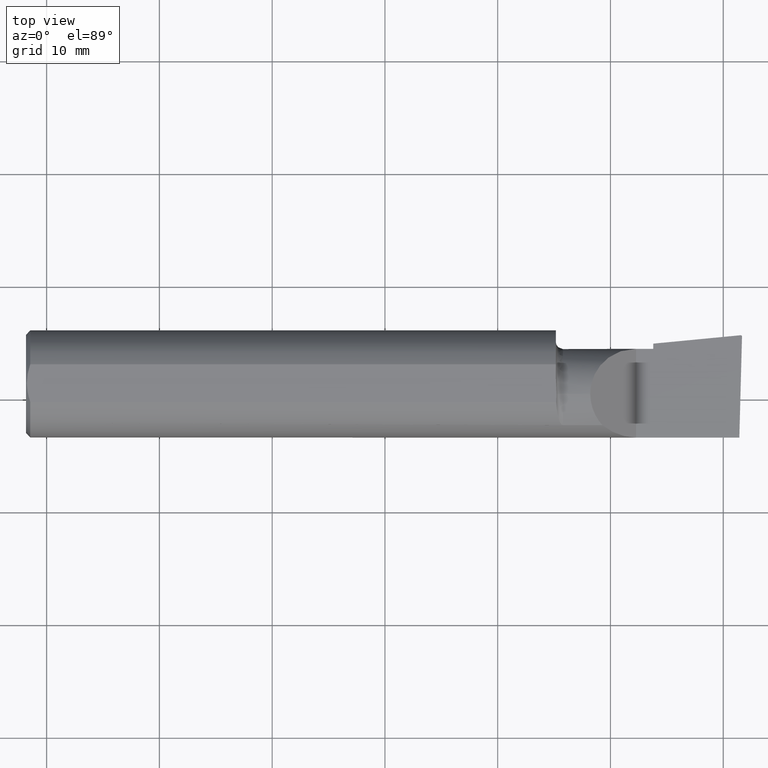
[diagram: clean part render]
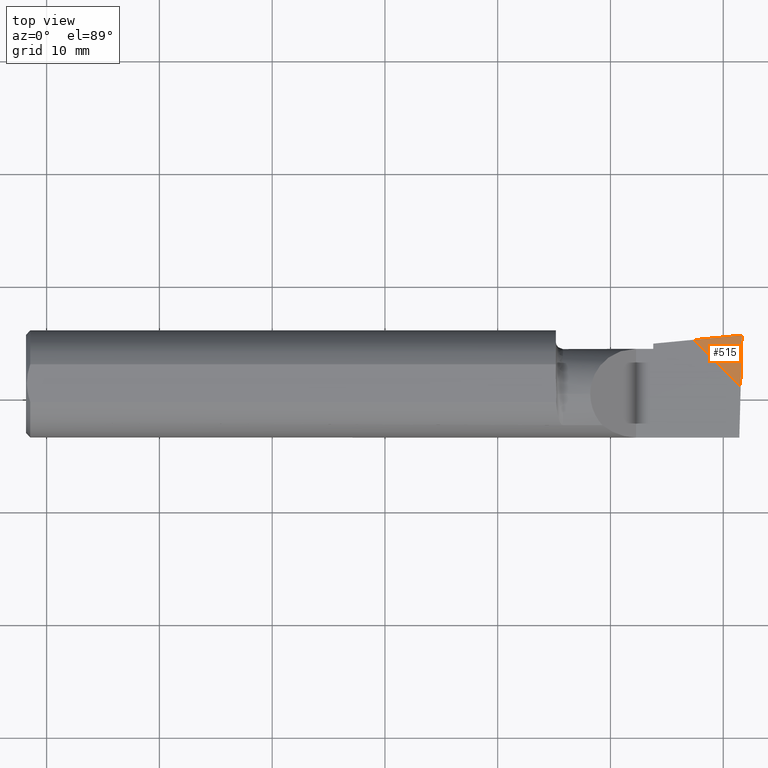
[diagram: same view with one face highlighted and labeled with its STEP entity id]
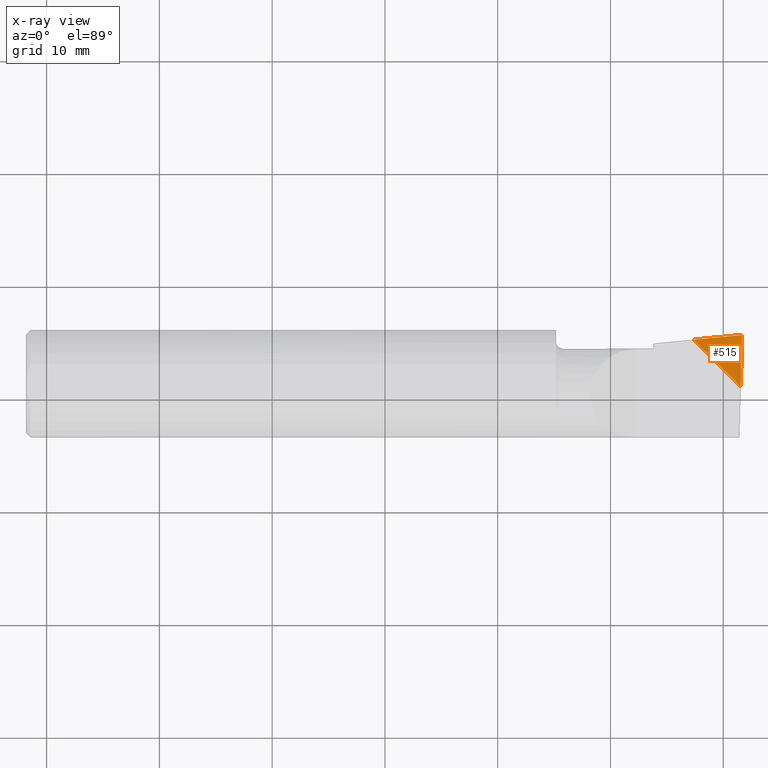
[diagram: x-ray of the same camera — body ghosted, the highlighted face saturated]
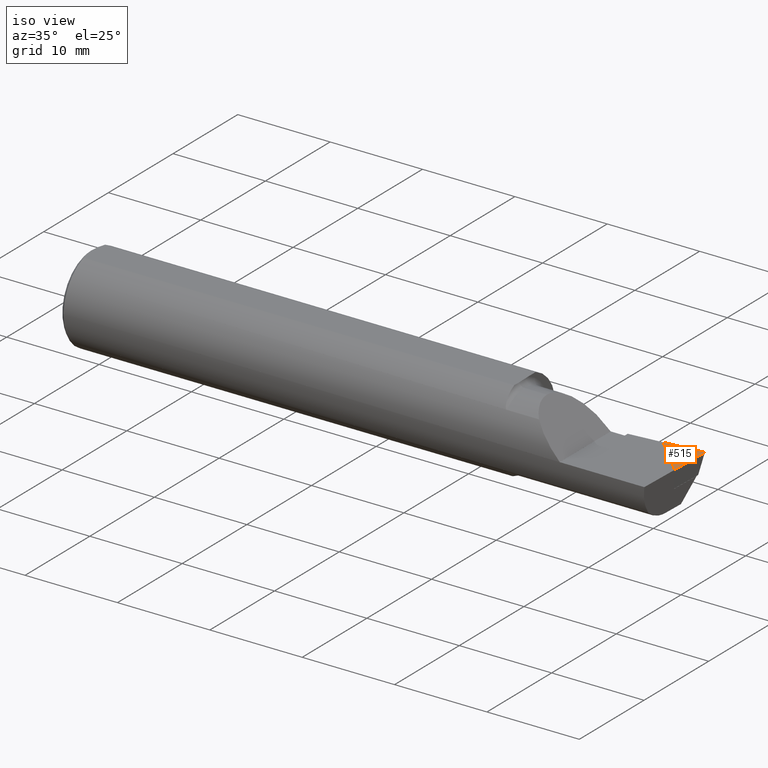
[diagram: same view with one face highlighted and labeled with its STEP entity id]
A machine part, top view. The second image highlights one B-rep face of the part: STEP entity #515.
The next image is the same camera in x-ray: the body ghosted, the highlighted face saturated — about 0% of this face is hidden behind the body in this view.
A second angle (iso view) of the same face is appended — the face is thin or edge-on in the first view.
In plain terms, the highlighted planar face has unit normal (0, 0, 1).
Its self-contained STEP definition (entity closure, byte-faithful):
#1 = EDGE_CURVE ( 'NONE', #270, #599, #916, .T. ) ;
#33 = VECTOR ( 'NONE', #243, 39.37007874015748143 ) ;
#42 = EDGE_CURVE ( 'NONE', #270, #531, #910, .T. ) ;
#43 =( BOUNDED_CURVE ( )  B_SPLINE_CURVE ( 3, ( #1213, #928, #1016, #842 ),
 .UNSPECIFIED., .F., .F. ) 
 B_SPLINE_CURVE_WITH_KNOTS ( ( 4, 4 ),
 ( 5.094537005627825188, 6.745662020094826516 ),
 .UNSPECIFIED. ) 
 CURVE ( )  GEOMETRIC_REPRESENTATION_ITEM ( )  RATIONAL_B_SPLINE_CURVE ( ( 1.000000000000000000, 0.7854291132347823723, 0.7854291132347823723, 1.000000000000000000 ) ) 
 REPRESENTATION_ITEM ( '' )  );
#45 = DIRECTION ( 'NONE',  ( 0.9953961983671787417, 0.09584575252022441150, -0.000000000000000000 ) ) ;
#123 = ORIENTED_EDGE ( 'NONE', *, *, #754, .T. ) ;
#171 = EDGE_CURVE ( 'NONE', #599, #1223, #971, .T. ) ;
#237 = CARTESIAN_POINT ( 'NONE',  ( 0.000000000000000000, 0.1850000000000018574, 0.000000000000000000 ) ) ;
#243 = DIRECTION ( 'NONE',  ( 0.7071067811865440200, -0.7071067811865511255, -0.000000000000000000 ) ) ;
#270 = VERTEX_POINT ( 'NONE', #463 ) ;
#300 = EDGE_LOOP ( 'NONE', ( #655, #123, #612, #392 ) ) ;
#392 = ORIENTED_EDGE ( 'NONE', *, *, #1, .T. ) ;
#421 = AXIS2_PLACEMENT_3D ( 'NONE', #659, #498, #1172 ) ;
#438 = VECTOR ( 'NONE', #1067, 39.37007874015748854 ) ;
#463 = CARTESIAN_POINT ( 'NONE',  ( -0.1687511156881184304, 0.1687511156881201513, 0.000000000000000000 ) ) ;
#498 = DIRECTION ( 'NONE',  ( 0.000000000000000000, 0.000000000000000000, 1.000000000000000000 ) ) ;
#515 = ADVANCED_FACE ( 'NONE', ( #755 ), #1145, .T. ) ;
#531 = VERTEX_POINT ( 'NONE', #1049 ) ;
#599 = VERTEX_POINT ( 'NONE', #609 ) ;
#609 = CARTESIAN_POINT ( 'NONE',  ( -0.004755318515724063846, 0.004755318515723935477, 0.000000000000000000 ) ) ;
#612 = ORIENTED_EDGE ( 'NONE', *, *, #42, .F. ) ;
#655 = ORIENTED_EDGE ( 'NONE', *, *, #171, .T. ) ;
#659 = CARTESIAN_POINT ( 'NONE',  ( 0.000000000000000000, 0.1850000000000018574, 0.000000000000000000 ) ) ;
#754 = EDGE_CURVE ( 'NONE', #1223, #531, #43, .T. ) ;
#755 = FACE_OUTER_BOUND ( 'NONE', #300, .T. ) ;
#842 = CARTESIAN_POINT ( 'NONE',  ( -0.004366002536026030757, 0.1845796017713798587, 0.000000000000000000 ) ) ;
#910 = LINE ( 'NONE', #237, #945 ) ;
#916 = LINE ( 'NONE', #926, #33 ) ;
#926 = CARTESIAN_POINT ( 'NONE',  ( 0.000000000000000000, 0.000000000000000000, 0.000000000000000000 ) ) ;
#928 = CARTESIAN_POINT ( 'NONE',  ( -5.095448961415480248E-05, 0.1830686307930179946, 0.000000000000000000 ) ) ;
#945 = VECTOR ( 'NONE', #45, 39.37007874015748143 ) ;
#971 = LINE ( 'NONE', #1105, #438 ) ;
#1016 = CARTESIAN_POINT ( 'NONE',  ( -0.001852916010054231778, 0.1848215844810036923, 0.000000000000000000 ) ) ;
#1049 = CARTESIAN_POINT ( 'NONE',  ( -0.004366002536026030757, 0.1845796017713798587, 0.000000000000000000 ) ) ;
#1067 = DIRECTION ( 'NONE',  ( 0.02637339639455605830, 0.9996521614854916304, 0.000000000000000000 ) ) ;
#1105 = CARTESIAN_POINT ( 'NONE',  ( 0.000000000000000000, 0.1850000000000018574, 0.000000000000000000 ) ) ;
#1145 = PLANE ( 'NONE',  #421 ) ;
#1150 = CARTESIAN_POINT ( 'NONE',  ( -0.0001200634187785923893, 0.1804491391892910634, 0.000000000000000000 ) ) ;
#1172 = DIRECTION ( 'NONE',  ( 1.000000000000000000, 0.000000000000000000, -0.000000000000000000 ) ) ;
#1213 = CARTESIAN_POINT ( 'NONE',  ( -0.0001200634187785923893, 0.1804491391892910634, 0.000000000000000000 ) ) ;
#1223 = VERTEX_POINT ( 'NONE', #1150 ) ;